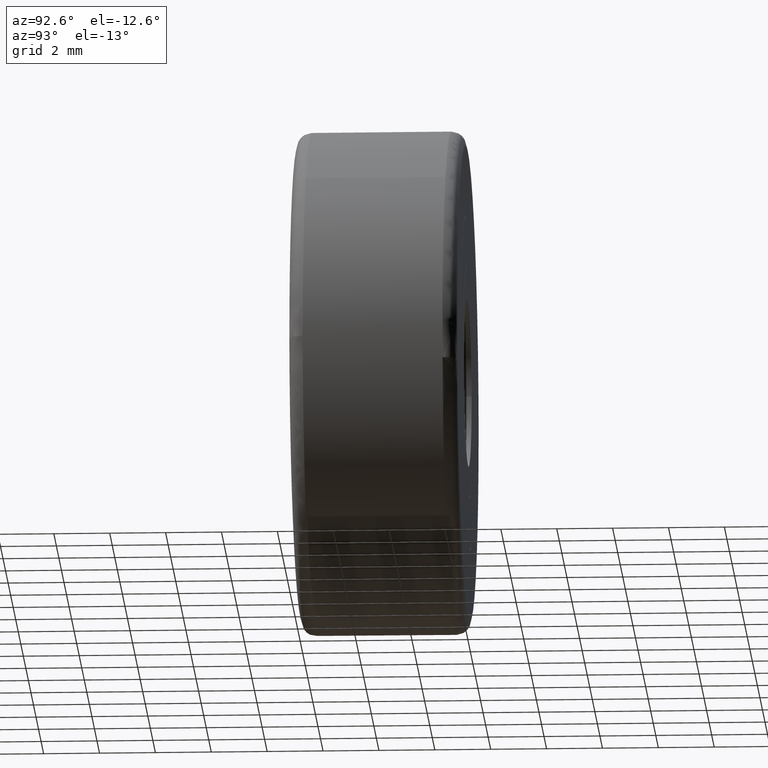
[diagram: clean part render]
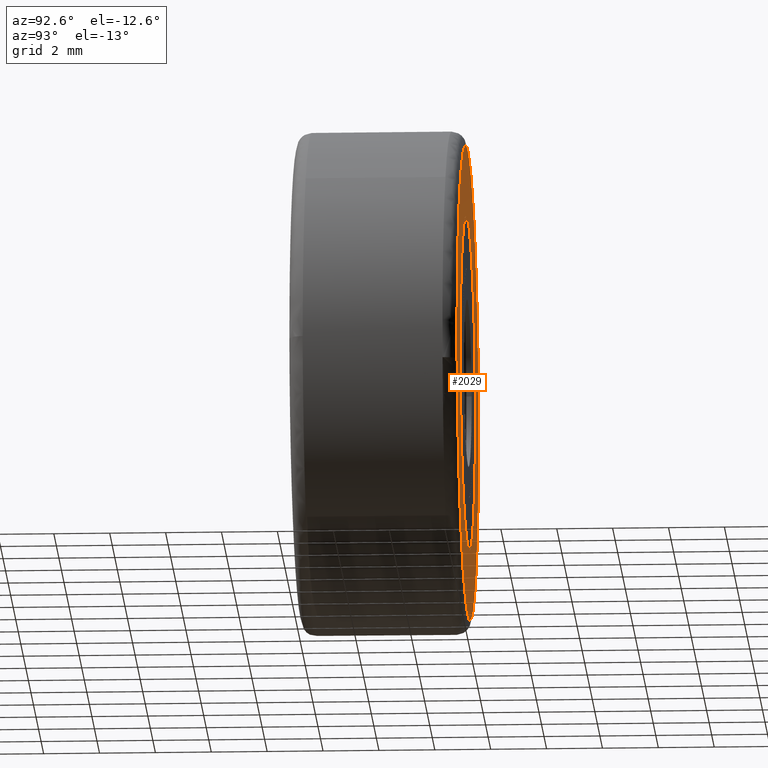
[diagram: same view with one face highlighted and labeled with its STEP entity id]
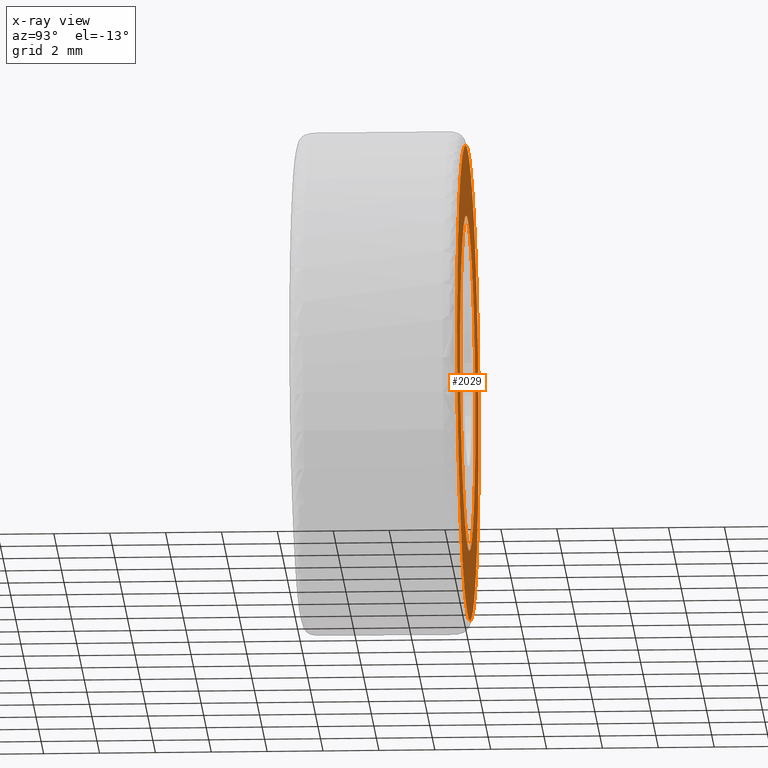
[diagram: x-ray of the same camera — body ghosted, the highlighted face saturated]
A machine part, auxiliary view. The second image highlights one B-rep face of the part: STEP entity #2029.
The next image is the same camera in x-ray: the body ghosted, the highlighted face saturated — about 0% of this face is hidden behind the body in this view.
In plain terms, the highlighted face is a freeform B-spline surface patch.
Its self-contained STEP definition (entity closure, byte-faithful):
#79=CARTESIAN_POINT('',(-5.981504421456022,6.0,0.470749249679189));
#80=VERTEX_POINT('',#79);
#86=CARTESIAN_POINT('',(0.0,6.0,6.0));
#87=VERTEX_POINT('',#86);
#88=CARTESIAN_POINT('',(0.0,6.0,6.0));
#89=CARTESIAN_POINT('',(-5.546347902529011,6.000000000000001,6.000000000000001));
#90=CARTESIAN_POINT('',(-5.981504421456022,6.0,0.470749249679189));
#98=(BOUNDED_CURVE()B_SPLINE_CURVE(2,(#88,#89,#90),.UNSPECIFIED.,.F.,.U.)B_SPLINE_CURVE_WITH_KNOTS((3,3),(0.0,0.236331453233516),.UNSPECIFIED.)CURVE()GEOMETRIC_REPRESENTATION_ITEM()RATIONAL_B_SPLINE_CURVE((1.0,0.723120479822298,0.969723674638156))REPRESENTATION_ITEM(''));
#99=EDGE_CURVE('',#87,#80,#98,.T.);
#101=CARTESIAN_POINT('',(5.981504421456022,6.000000000000001,-0.470749249679190));
#102=VERTEX_POINT('',#101);
#103=CARTESIAN_POINT('',(5.981504421456022,6.000000000000001,-0.470749249679190));
#104=CARTESIAN_POINT('',(6.000000000000001,6.000000000000001,-0.235737967347214));
#105=CARTESIAN_POINT('',(6.0,6.0,0.0));
#106=CARTESIAN_POINT('',(6.0,6.0,6.0));
#107=CARTESIAN_POINT('',(0.0,6.0,6.0));
#115=(BOUNDED_CURVE()B_SPLINE_CURVE(2,(#103,#104,#105,#106,#107),.UNSPECIFIED.,.F.,.U.)B_SPLINE_CURVE_WITH_KNOTS((3,2,3),(0.736331453233516,0.750000000000000,1.0),.UNSPECIFIED.)CURVE()GEOMETRIC_REPRESENTATION_ITEM()RATIONAL_B_SPLINE_CURVE((0.969723674638155,0.983986301364249,1.0,0.707106781186548,1.0))REPRESENTATION_ITEM(''));
#116=EDGE_CURVE('',#102,#87,#115,.T.);
#192=CARTESIAN_POINT('',(0.0,6.0,-6.0));
#193=VERTEX_POINT('',#192);
#194=CARTESIAN_POINT('',(0.0,6.0,-6.0));
#195=CARTESIAN_POINT('',(5.546347902529008,6.0,-6.0));
#196=CARTESIAN_POINT('',(5.981504421456022,6.000000000000001,-0.470749249679190));
#204=(BOUNDED_CURVE()B_SPLINE_CURVE(2,(#194,#195,#196),.UNSPECIFIED.,.F.,.U.)B_SPLINE_CURVE_WITH_KNOTS((3,3),(0.500000000000000,0.736331453233516),.UNSPECIFIED.)CURVE()GEOMETRIC_REPRESENTATION_ITEM()RATIONAL_B_SPLINE_CURVE((1.0,0.723120479822298,0.969723674638155))REPRESENTATION_ITEM(''));
#205=EDGE_CURVE('',#193,#102,#204,.T.);
#207=CARTESIAN_POINT('',(-5.981504421456022,6.000000000000001,0.470749249679189));
#208=CARTESIAN_POINT('',(-6.000000000000001,6.000000000000001,0.235737967347214));
#209=CARTESIAN_POINT('',(-6.0,6.0,0.0));
#210=CARTESIAN_POINT('',(-6.0,6.0,-6.0));
#211=CARTESIAN_POINT('',(0.0,6.0,-6.0));
#219=(BOUNDED_CURVE()B_SPLINE_CURVE(2,(#207,#208,#209,#210,#211),.UNSPECIFIED.,.F.,.U.)B_SPLINE_CURVE_WITH_KNOTS((3,2,3),(0.236331453233516,0.250000000000000,0.500000000000000),.UNSPECIFIED.)CURVE()GEOMETRIC_REPRESENTATION_ITEM()RATIONAL_B_SPLINE_CURVE((0.969723674638155,0.983986301364249,1.0,0.707106781186548,1.0))REPRESENTATION_ITEM(''));
#220=EDGE_CURVE('',#80,#193,#219,.T.);
#1763=CARTESIAN_POINT('',(8.443148930439094,6.0,-0.981445949391750));
#1764=VERTEX_POINT('',#1763);
#1778=CARTESIAN_POINT('',(0.0,6.0,8.500000000000000));
#1779=VERTEX_POINT('',#1778);
#1780=CARTESIAN_POINT('',(8.443148930439094,6.0,-0.981445949391750));
#1781=CARTESIAN_POINT('',(8.500000000000000,6.0,-0.492369547354471));
#1782=CARTESIAN_POINT('',(8.500000000000000,6.0,-1.775281E-016));
#1783=CARTESIAN_POINT('',(8.500000000000002,6.0,8.500000000000002));
#1784=CARTESIAN_POINT('',(0.0,6.0,8.500000000000000));
#1792=(BOUNDED_CURVE()B_SPLINE_CURVE(2,(#1780,#1781,#1782,#1783,#1784),.UNSPECIFIED.,.F.,.U.)B_SPLINE_CURVE_WITH_KNOTS((3,2,3),(0.229999999999107,0.250000000000000,0.500000000000000),.UNSPECIFIED.)CURVE()GEOMETRIC_REPRESENTATION_ITEM()RATIONAL_B_SPLINE_CURVE((0.956886118188902,0.976568542493877,1.0,0.707106781186548,1.0))REPRESENTATION_ITEM(''));
#1793=EDGE_CURVE('',#1764,#1779,#1792,.T.);
#1795=CARTESIAN_POINT('',(-8.500000000038826,6.0,4.426226E-016));
#1796=VERTEX_POINT('',#1795);
#1797=CARTESIAN_POINT('',(0.0,6.0,8.500000000000000));
#1798=CARTESIAN_POINT('',(-8.499999999999957,6.000000000000001,8.500000000000000));
#1799=CARTESIAN_POINT('',(-8.500000000038826,5.999999999999999,4.426226E-016));
#1807=(BOUNDED_CURVE()B_SPLINE_CURVE(2,(#1797,#1798,#1799),.UNSPECIFIED.,.F.,.U.)B_SPLINE_CURVE_WITH_KNOTS((3,3),(0.500000000000000,0.749999999999999),.UNSPECIFIED.)CURVE()GEOMETRIC_REPRESENTATION_ITEM()RATIONAL_B_SPLINE_CURVE((1.0,0.707106781186549,0.999999999999998))REPRESENTATION_ITEM(''));
#1808=EDGE_CURVE('',#1779,#1796,#1807,.T.);
#1854=CARTESIAN_POINT('',(0.0,6.0,-8.500000000000000));
#1855=VERTEX_POINT('',#1854);
#1856=CARTESIAN_POINT('',(-8.500000000038826,6.0,4.426226E-016));
#1857=CARTESIAN_POINT('',(-8.500000000000002,6.0,-8.500000000000002));
#1858=CARTESIAN_POINT('',(0.0,6.0,-8.500000000000000));
#1866=(BOUNDED_CURVE()B_SPLINE_CURVE(2,(#1856,#1857,#1858),.UNSPECIFIED.,.F.,.U.)B_SPLINE_CURVE_WITH_KNOTS((3,3),(0.750000000000000,1.0),.UNSPECIFIED.)CURVE()GEOMETRIC_REPRESENTATION_ITEM()RATIONAL_B_SPLINE_CURVE((1.0,0.707106781186548,1.0))REPRESENTATION_ITEM(''));
#1867=EDGE_CURVE('',#1796,#1855,#1866,.T.);
#1869=CARTESIAN_POINT('',(0.0,6.0,-8.500000000000000));
#1870=CARTESIAN_POINT('',(7.569179456988788,6.000000000000001,-8.500000000000000));
#1871=CARTESIAN_POINT('',(8.443148930439094,5.999999999999999,-0.981445949391750));
#1879=(BOUNDED_CURVE()B_SPLINE_CURVE(2,(#1869,#1870,#1871),.UNSPECIFIED.,.F.,.U.)B_SPLINE_CURVE_WITH_KNOTS((3,3),(0.0,0.229999999999107),.UNSPECIFIED.)CURVE()GEOMETRIC_REPRESENTATION_ITEM()RATIONAL_B_SPLINE_CURVE((1.0,0.730538238692670,0.956886118188902))REPRESENTATION_ITEM(''));
#1880=EDGE_CURVE('',#1855,#1764,#1879,.T.);
#2012=CARTESIAN_POINT('',(-9.349147675143394,6.0,9.349149967050700));
#2013=CARTESIAN_POINT('',(-9.349147675143394,6.0,-9.349150423026234));
#2014=CARTESIAN_POINT('',(9.349102245958861,6.0,9.349149967050700));
#2015=CARTESIAN_POINT('',(9.349102245958861,6.0,-9.349150423026234));
#2016=B_SPLINE_SURFACE_WITH_KNOTS('',1,1,((#2012,#2014),(#2013,#2015)),.UNSPECIFIED.,.F.,.F.,.U.,(2,2),(2,2),(0.0,18.698300390076930),(0.0,18.698249921102249),.UNSPECIFIED.);
#2017=ORIENTED_EDGE('',*,*,#1867,.F.);
#2018=ORIENTED_EDGE('',*,*,#1808,.F.);
#2019=ORIENTED_EDGE('',*,*,#1793,.F.);
#2020=ORIENTED_EDGE('',*,*,#1880,.F.);
#2021=EDGE_LOOP('',(#2017,#2018,#2019,#2020));
#2022=FACE_OUTER_BOUND('',#2021,.T.);
#2023=ORIENTED_EDGE('',*,*,#205,.T.);
#2024=ORIENTED_EDGE('',*,*,#116,.T.);
#2025=ORIENTED_EDGE('',*,*,#99,.T.);
#2026=ORIENTED_EDGE('',*,*,#220,.T.);
#2027=EDGE_LOOP('',(#2023,#2024,#2025,#2026));
#2028=FACE_BOUND('',#2027,.T.);
#2029=ADVANCED_FACE('',(#2022,#2028),#2016,.F.);